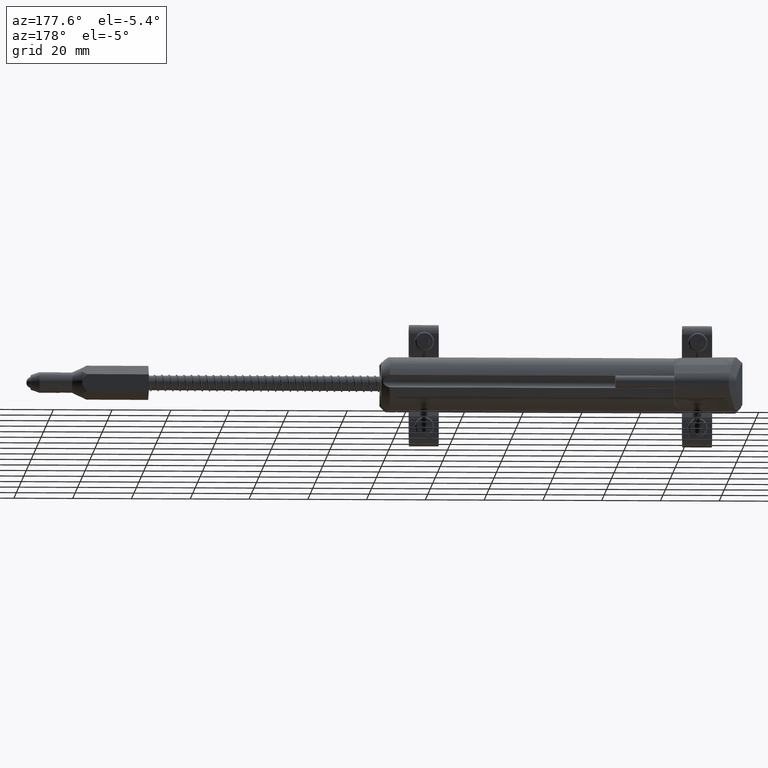
[diagram: clean part render]
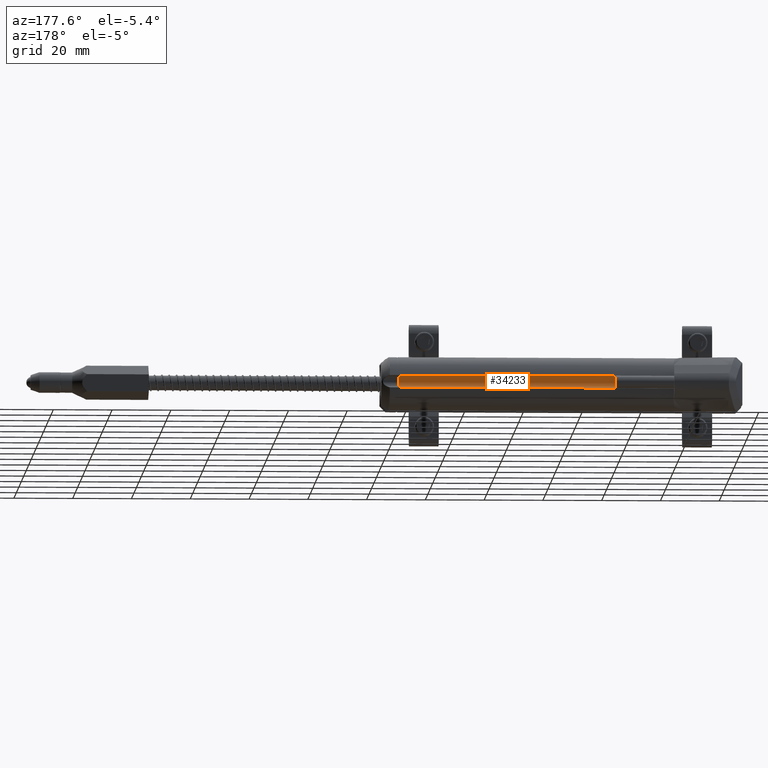
[diagram: same view with one face highlighted and labeled with its STEP entity id]
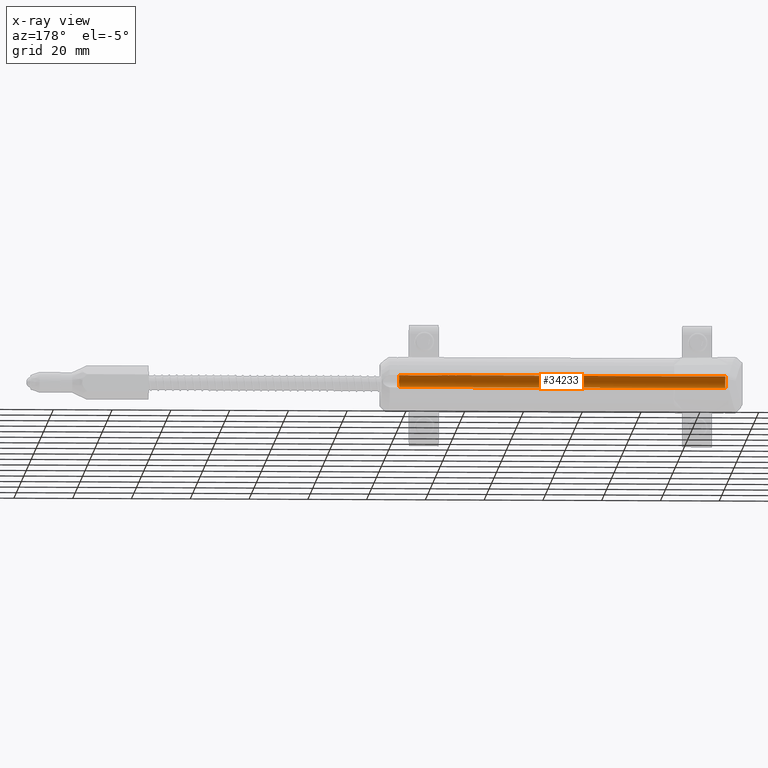
[diagram: x-ray of the same camera — body ghosted, the highlighted face saturated]
A machine part, auxiliary view. The second image highlights one B-rep face of the part: STEP entity #34233.
The next image is the same camera in x-ray: the body ghosted, the highlighted face saturated — about 0% of this face is hidden behind the body in this view.
In plain terms, the highlighted cylindrical surface (edge-blend (fillet) strip) has radius 2.1758 mm, axis along (1, -0, 0).
Its self-contained STEP definition (entity closure, byte-faithful):
#2420 = EDGE_CURVE ( 'NONE', #15744, #18712, #11370, .T. ) ;
#2869 = CIRCLE ( 'NONE', #9044, 0.08566121303149605570 ) ;
#3607 = DIRECTION ( 'NONE',  ( 0.000000000000000000, 0.000000000000000000, -1.000000000000000000 ) ) ;
#4111 = LINE ( 'NONE', #11851, #32644 ) ;
#6243 = DIRECTION ( 'NONE',  ( -1.000000000000000000, 1.033975794397574105E-25, -2.391543914929064682E-17 ) ) ;
#8590 = AXIS2_PLACEMENT_3D ( 'NONE', #20862, #33900, #22981 ) ;
#9044 = AXIS2_PLACEMENT_3D ( 'NONE', #27674, #9188, #9364 ) ;
#9188 = DIRECTION ( 'NONE',  ( -1.000000000000000000, 1.033975794397574105E-25, -2.391543914929064682E-17 ) ) ;
#9364 = DIRECTION ( 'NONE',  ( 0.000000000000000000, 0.000000000000000000, -1.000000000000000000 ) ) ;
#10098 = VERTEX_POINT ( 'NONE', #29062 ) ;
#10127 = CYLINDRICAL_SURFACE ( 'NONE', #8590, 0.08566121303149605570 ) ;
#11370 = LINE ( 'NONE', #18295, #18844 ) ;
#11513 = CARTESIAN_POINT ( 'NONE',  ( -0.1574803149606300579, 0.4114990196062992545, 4.780733988912460139E-16 ) ) ;
#11851 = CARTESIAN_POINT ( 'NONE',  ( -3.543307086614172263, 0.3803105211827046972, 0.07978170833034917142 ) ) ;
#13737 = CIRCLE ( 'NONE', #33966, 0.08566121303149605570 ) ;
#15660 = VERTEX_POINT ( 'NONE', #16382 ) ;
#15744 = VERTEX_POINT ( 'NONE', #22018 ) ;
#15756 = ORIENTED_EDGE ( 'NONE', *, *, #19137, .F. ) ;
#16175 = DIRECTION ( 'NONE',  ( 1.000000000000000000, -1.033975794397574105E-25, 2.391543914929064682E-17 ) ) ;
#16382 = CARTESIAN_POINT ( 'NONE',  ( -4.527559055118110187, 0.3803105211884074133, 0.07978170833821253416 ) ) ;
#18048 = FACE_OUTER_BOUND ( 'NONE', #30152, .T. ) ;
#18295 = CARTESIAN_POINT ( 'NONE',  ( -0.1574803149606300579, 0.3803105211879074798, -0.07978170834416883905 ) ) ;
#18712 = VERTEX_POINT ( 'NONE', #30375 ) ;
#18844 = VECTOR ( 'NONE', #16175, 39.37007874015748143 ) ;
#19137 = EDGE_CURVE ( 'NONE', #10098, #15660, #4111, .T. ) ;
#19781 = ORIENTED_EDGE ( 'NONE', *, *, #21486, .T. ) ;
#20862 = CARTESIAN_POINT ( 'NONE',  ( -3.543307086614172263, 0.4114990196062992545, 4.097771990496394828E-16 ) ) ;
#21486 = EDGE_CURVE ( 'NONE', #15744, #15660, #2869, .T. ) ;
#22018 = CARTESIAN_POINT ( 'NONE',  ( -4.527559055118110187, 0.3803105211910097760, -0.07978170834512171572 ) ) ;
#22584 = DIRECTION ( 'NONE',  ( -1.000000000000000000, 1.033975794397574105E-25, -2.391543914929064682E-17 ) ) ;
#22981 = DIRECTION ( 'NONE',  ( 0.000000000000000000, 0.000000000000000000, -1.000000000000000000 ) ) ;
#27100 = ORIENTED_EDGE ( 'NONE', *, *, #30868, .F. ) ;
#27674 = CARTESIAN_POINT ( 'NONE',  ( -4.527559055118110187, 0.4114990196062992545, 3.414809992080329023E-16 ) ) ;
#27881 = ORIENTED_EDGE ( 'NONE', *, *, #2420, .F. ) ;
#29062 = CARTESIAN_POINT ( 'NONE',  ( -0.1574803149606300579, 0.3803105211884074133, 0.07978170833821263130 ) ) ;
#30152 = EDGE_LOOP ( 'NONE', ( #15756, #27100, #27881, #19781 ) ) ;
#30375 = CARTESIAN_POINT ( 'NONE',  ( -0.1574803149606300579, 0.3803105211910097760, -0.07978170834512157694 ) ) ;
#30868 = EDGE_CURVE ( 'NONE', #18712, #10098, #13737, .T. ) ;
#32644 = VECTOR ( 'NONE', #22584, 39.37007874015748143 ) ;
#33900 = DIRECTION ( 'NONE',  ( 1.000000000000000000, -1.033975794397574105E-25, 2.391543914929064682E-17 ) ) ;
#33966 = AXIS2_PLACEMENT_3D ( 'NONE', #11513, #6243, #3607 ) ;
#34233 = ADVANCED_FACE ( 'NONE', ( #18048 ), #10127, .F. ) ;